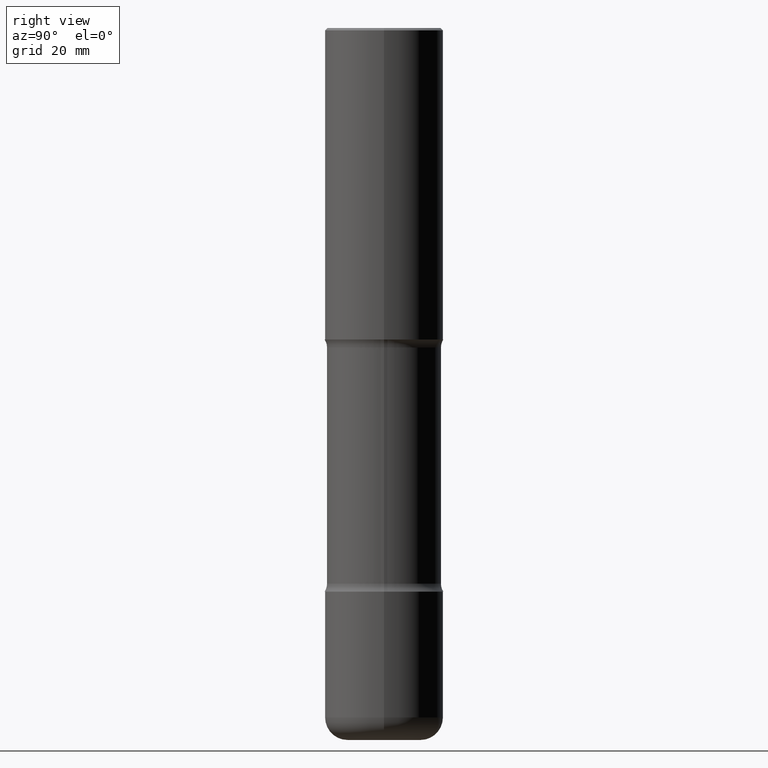
[diagram: clean part render]
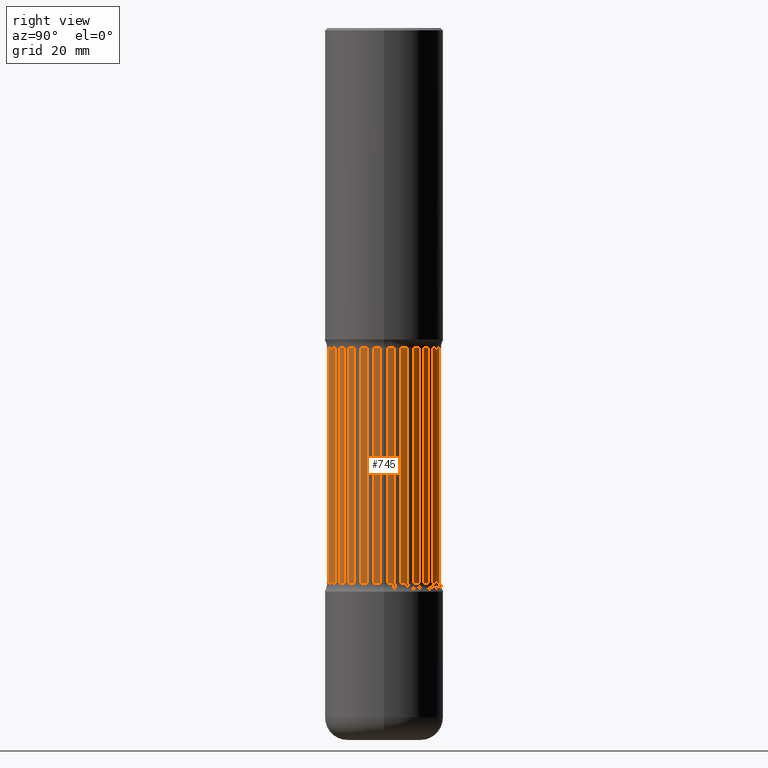
[diagram: same view with one face highlighted and labeled with its STEP entity id]
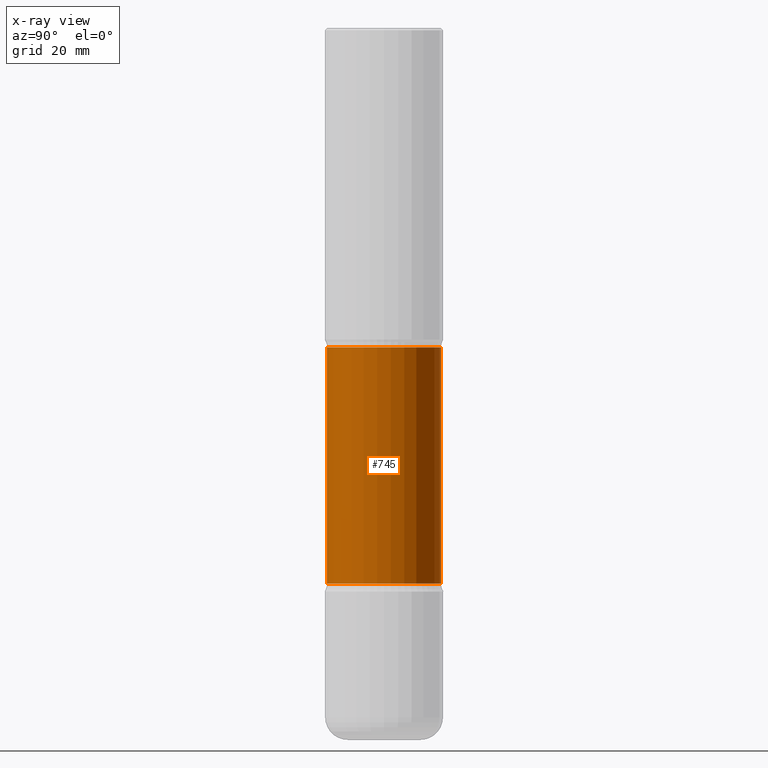
[diagram: x-ray of the same camera — body ghosted, the highlighted face saturated]
A machine part, right view. The second image highlights one B-rep face of the part: STEP entity #745.
The next image is the same camera in x-ray: the body ghosted, the highlighted face saturated — about 0% of this face is hidden behind the body in this view.
In plain terms, the highlighted cylindrical surface (partial cylindrical patch) has radius 12.192 mm, axis along (0, -0, -1).
Its self-contained STEP definition (entity closure, byte-faithful):
#17 = EDGE_CURVE ( 'NONE', #45, #494, #257, .T. ) ;
#33 = EDGE_CURVE ( 'NONE', #311, #494, #176, .T. ) ;
#45 = VERTEX_POINT ( 'NONE', #636 ) ;
#48 = AXIS2_PLACEMENT_3D ( 'NONE', #368, #57, #543 ) ;
#50 = CARTESIAN_POINT ( 'NONE',  ( 1.473465238116466876E-28, -2.079683321267085678E-14, -5.990920599932144874 ) ) ;
#57 = DIRECTION ( 'NONE',  ( 2.513195084323526863E-29, -3.394493453808608059E-15, -1.000000000000000000 ) ) ;
#176 = LINE ( 'NONE', #678, #702 ) ;
#182 = DIRECTION ( 'NONE',  ( 2.513195084323526863E-29, -3.394493453808608059E-15, -1.000000000000000000 ) ) ;
#193 = DIRECTION ( 'NONE',  ( 2.513195084323527144E-29, -3.394493453808608059E-15, -1.000000000000000000 ) ) ;
#245 = DIRECTION ( 'NONE',  ( 6.982962677686265922E-15, 1.000000000000000000, -2.276539994720218757E-15 ) ) ;
#257 = CIRCLE ( 'NONE', #48, 0.4800000000000001488 ) ;
#258 = FACE_OUTER_BOUND ( 'NONE', #676, .T. ) ;
#280 = ORIENTED_EDGE ( 'NONE', *, *, #521, .T. ) ;
#300 = ORIENTED_EDGE ( 'NONE', *, *, #722, .F. ) ;
#311 = VERTEX_POINT ( 'NONE', #476 ) ;
#335 = AXIS2_PLACEMENT_3D ( 'NONE', #455, #507, #518 ) ;
#368 = CARTESIAN_POINT ( 'NONE',  ( 1.144552364564089489E-28, -1.635431061221206023E-14, -4.682176700168747985 ) ) ;
#418 = DIRECTION ( 'NONE',  ( 2.513195084323527144E-29, -3.394493453808608059E-15, -1.000000000000000000 ) ) ;
#420 = LINE ( 'NONE', #435, #736 ) ;
#435 = CARTESIAN_POINT ( 'NONE',  ( 3.351822085289556248E-15, 0.4799999999999793321, -5.990920599932145763 ) ) ;
#455 = CARTESIAN_POINT ( 'NONE',  ( 6.445890458930413557E-29, -9.601463517454541281E-15, -2.692823299831254236 ) ) ;
#473 = AXIS2_PLACEMENT_3D ( 'NONE', #50, #182, #245 ) ;
#476 = CARTESIAN_POINT ( 'NONE',  ( -3.361644018907988919E-15, -0.4800000000000097522, -2.692823299831252459 ) ) ;
#494 = VERTEX_POINT ( 'NONE', #514 ) ;
#507 = DIRECTION ( 'NONE',  ( 2.513195084323526863E-29, -3.394493453808608059E-15, -1.000000000000000000 ) ) ;
#514 = CARTESIAN_POINT ( 'NONE',  ( -3.361644018907934882E-15, -0.4800000000000164690, -4.682176700168746208 ) ) ;
#518 = DIRECTION ( 'NONE',  ( 6.982962677686265922E-15, 1.000000000000000000, -3.414809992080327938E-15 ) ) ;
#521 = EDGE_CURVE ( 'NONE', #727, #311, #713, .T. ) ;
#543 = DIRECTION ( 'NONE',  ( 6.982962677686265922E-15, 1.000000000000000000, -3.414809992080327938E-15 ) ) ;
#545 = ORIENTED_EDGE ( 'NONE', *, *, #33, .T. ) ;
#636 = CARTESIAN_POINT ( 'NONE',  ( 3.351822085289523116E-15, 0.4799999999999838285, -4.682176700168749761 ) ) ;
#676 = EDGE_LOOP ( 'NONE', ( #280, #545, #682, #300 ) ) ;
#678 = CARTESIAN_POINT ( 'NONE',  ( -3.293039038930187996E-15, -0.4800000000000209655, -5.990920599932143986 ) ) ;
#682 = ORIENTED_EDGE ( 'NONE', *, *, #17, .F. ) ;
#702 = VECTOR ( 'NONE', #418, 39.37007874015748143 ) ;
#713 = CIRCLE ( 'NONE', #335, 0.4800000000000001488 ) ;
#722 = EDGE_CURVE ( 'NONE', #727, #45, #420, .T. ) ;
#727 = VERTEX_POINT ( 'NONE', #793 ) ;
#730 = CYLINDRICAL_SURFACE ( 'NONE', #473, 0.4800000000000001488 ) ;
#736 = VECTOR ( 'NONE', #193, 39.37007874015748143 ) ;
#745 = ADVANCED_FACE ( 'NONE', ( #258 ), #730, .T. ) ;
#793 = CARTESIAN_POINT ( 'NONE',  ( 3.351822085289473418E-15, 0.4799999999999904898, -2.692823299831256012 ) ) ;